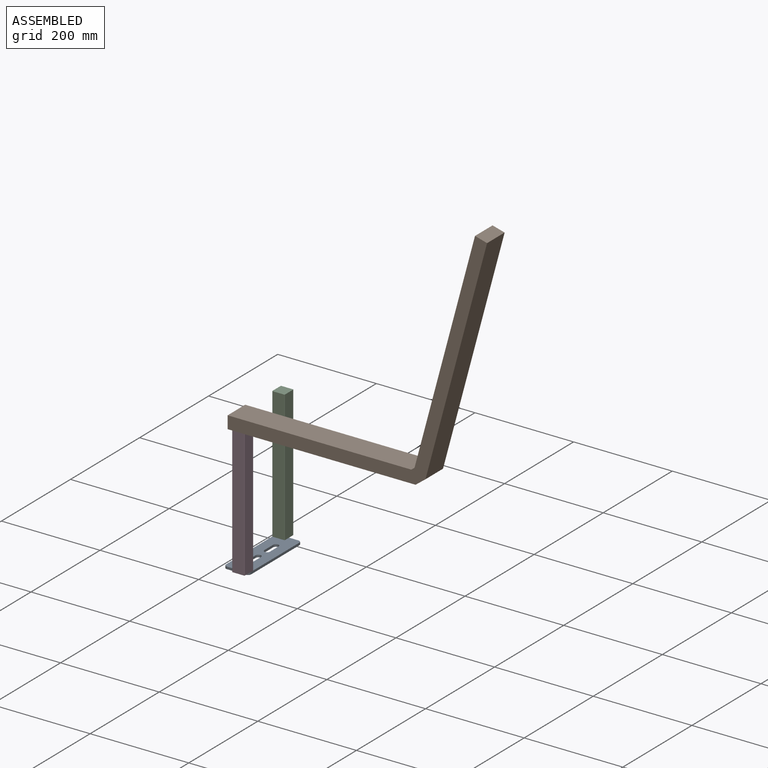
[diagram: assembled view]
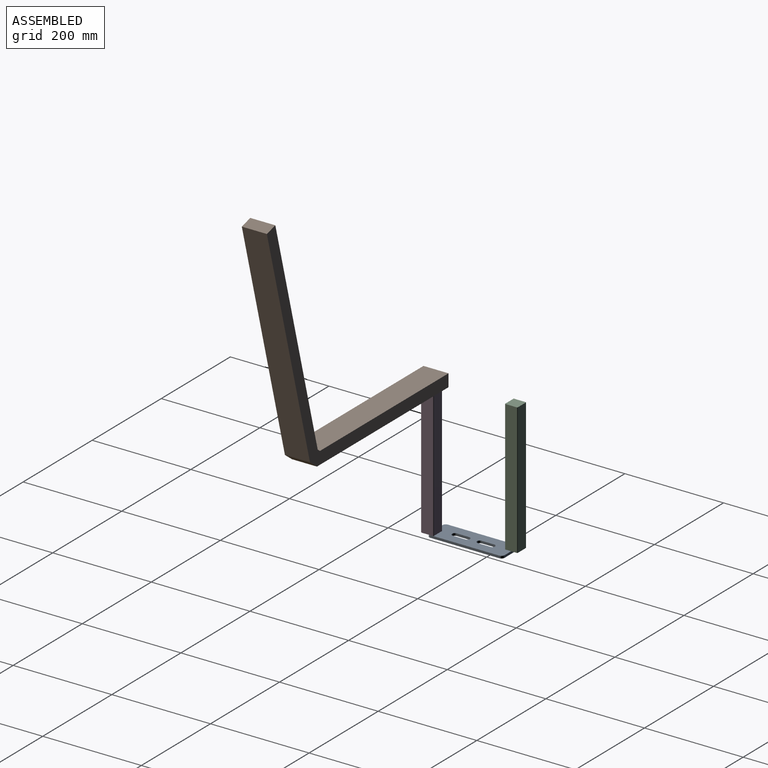
[diagram: assembled view, second angle]
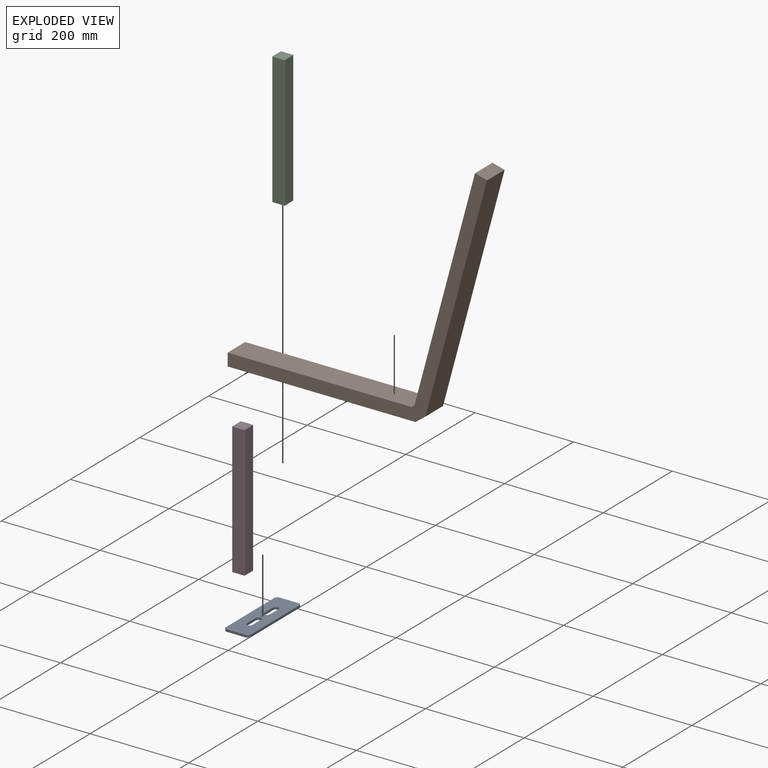
[diagram: exploded view]
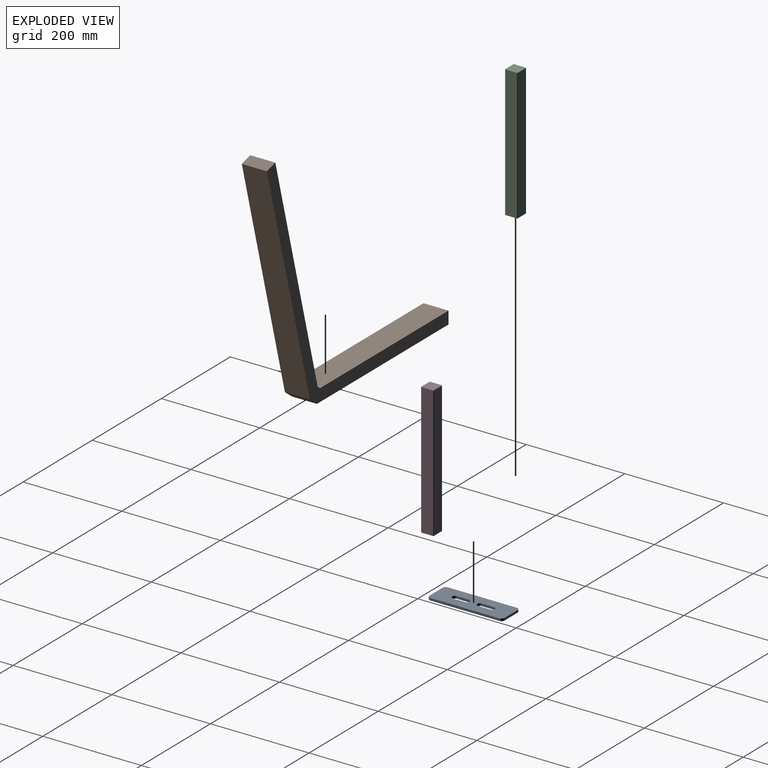
[diagram: exploded view, second angle]
ASSEMBLY  parts=4 mates=3
PART A: 18 faces, bbox 50.8x152.4x4.8 mm
  f0: cylinder r=5.56mm len=11.11mm, axis (0,0,-1), area 83.1mm2, adj f1,f15,f16,f17
  f1: plane 25.4x4.76mm, normal (1,0,0), area 121mm2, adj f0,f2,f16,f17
  f2: cylinder r=5.56mm len=11.11mm, axis (0,0,-1), area 83.1mm2, adj f1,f15,f16,f17
  f3: plane 38.1x4.76mm, normal (0,1,0), area 181.5mm2, adj f4,f13,f16,f17
  f4: cylinder r=6.35mm len=6.35mm, axis (0,0,-1), area 47.5mm2, adj f3,f5,f16,f17
  f5: plane 139.7x4.76mm, normal (-1,0,0), area 665.3mm2, adj f4,f6,f16,f17
  f6: cylinder r=6.35mm len=6.35mm, axis (0,0,-1), area 47.5mm2, adj f5,f7,f16,f17
  f7: plane 38.1x4.76mm, normal (0,-1,0), area 181.5mm2, adj f6,f8,f16,f17
  f8: cylinder r=6.35mm len=6.35mm, axis (0,0,-1), area 47.5mm2, adj f7,f9,f16,f17
  f9: plane 139.7x4.76mm, normal (1,0,0), area 665.3mm2, adj f8,f13,f16,f17
  f10: plane 25.4x4.76mm, normal (-1,0,0), area 121mm2, adj f11,f14,f16,f17
  f11: cylinder r=5.56mm len=11.11mm, axis (0,0,-1), area 83.1mm2, adj f10,f12,f16,f17
  f12: plane 25.4x4.76mm, normal (1,0,0), area 121mm2, adj f11,f14,f16,f17
  f13: cylinder r=6.35mm len=6.35mm, axis (0,0,-1), area 47.5mm2, adj f3,f9,f16,f17
  f14: cylinder r=5.56mm len=11.11mm, axis (0,0,-1), area 83.1mm2, adj f10,f12,f16,f17
  f15: plane 25.4x4.76mm, normal (-1,0,0), area 121mm2, adj f0,f2,f16,f17
  f16: plane 152.4x50.8mm, normal (0,0,1), area 6948.8mm2, adj f0,f1,f2,f3,f4,f5,f6,f7
  f17: plane 152.4x50.8mm, normal (0,0,-1), area 6948.8mm2, adj f0,f1,f2,f3,f4,f5,f6,f7
PART B: 10 faces, bbox 526.1x488.2x50.8 mm
  f0: plane 50.8x6.47mm, normal (-0.61,0.79,0), area 414.3mm2, adj f1,f7,f8,f9
  f1: plane 372.38x50.8mm, normal (0,1,0), area 18916.8mm2, adj f0,f2,f8,f9
  f2: plane 50.8x25.4mm, normal (-1,0,0), area 1290.3mm2, adj f1,f3,f8,f9
  f3: plane 381x50.8mm, normal (0,-1,0), area 19354.8mm2, adj f2,f4,f8,f9
  f4: plane 50.8x20.15mm, normal (0.61,-0.79,0), area 1290.3mm2, adj f3,f5,f8,f9
  f5: plane 466.16x124.91mm, normal (0.97,-0.26,0), area 24516.1mm2, adj f4,f6,f8,f9
  f6: plane 50.8x24.53mm, normal (0.26,0.97,0), area 1290.3mm2, adj f5,f7,f8,f9
  f7: plane 457.83x122.67mm, normal (-0.97,0.26,0), area 24078.1mm2, adj f0,f6,f8,f9
  f8: plane 526.06x488.19mm, normal (0,0,1), area 22142.6mm2, adj f0,f1,f2,f3,f4,f5,f6,f7
  f9: plane 526.06x488.19mm, normal (0,0,-1), area 22142.6mm2, adj f0,f1,f2,f3,f4,f5,f6,f7
PART C: 10 faces, bbox 25.4x266.7x25.4 mm
  f0: plane 266.7x23.62mm, normal (-1,0,0), area 6300mm2, adj f1,f7,f8,f9
  f1: cylinder r=0.89mm len=266.7mm, axis (0,1,0), area 372.4mm2, adj f0,f2,f8,f9
  f2: plane 266.7x23.62mm, normal (0,0,-1), area 6300mm2, adj f1,f3,f8,f9
  f3: cylinder r=0.89mm len=266.7mm, axis (0,1,0), area 372.4mm2, adj f2,f4,f8,f9
  f4: plane 266.7x23.62mm, normal (1,0,0), area 6300mm2, adj f3,f5,f8,f9
  f5: cylinder r=0.89mm len=266.7mm, axis (0,1,0), area 372.4mm2, adj f4,f6,f8,f9
  f6: plane 266.7x23.62mm, normal (0,0,1), area 6300mm2, adj f5,f7,f8,f9
  f7: cylinder r=0.89mm len=266.7mm, axis (0,1,0), area 372.4mm2, adj f0,f6,f8,f9
  f8: plane 25.4x25.4mm, normal (0,-1,0), area 644.5mm2, adj f0,f1,f2,f3,f4,f5,f6,f7
  f9: plane 25.4x25.4mm, normal (0,1,0), area 644.5mm2, adj f0,f1,f2,f3,f4,f5,f6,f7
PART D: same geometry as C
PLACE A t=(19.02,32.8,-13.64)mm
PLACE B rot(axis=(1,0,0),90deg) t=(-6.38,58.2,257.82)mm
PLACE C rot(axis=(0.58,0.58,0.58),120deg) t=(-31.78,172.5,257.82)mm
PLACE D rot(axis=(0.58,-0.58,-0.58),120deg) t=(19.02,45.5,257.82)mm
MATE fastened D.f8 <-> A.f16  axis (0,0,-1) through (-6.38,32.8,-8.88)mm
MATE fastened B.f3 <-> D.f9  axis (0,0,-1) through (-6.38,32.8,257.82)mm
MATE fastened C.f8 <-> A.f16  axis (0,0,-1) through (-6.38,185.2,-8.88)mm
